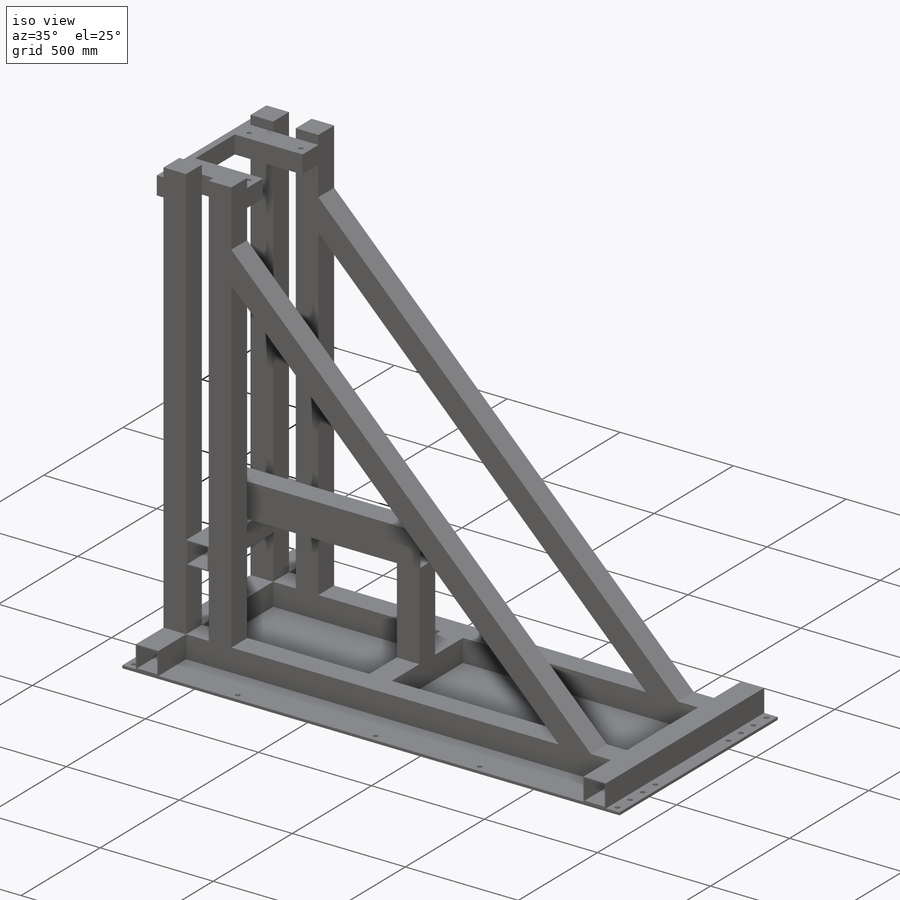
[diagram: iso view]
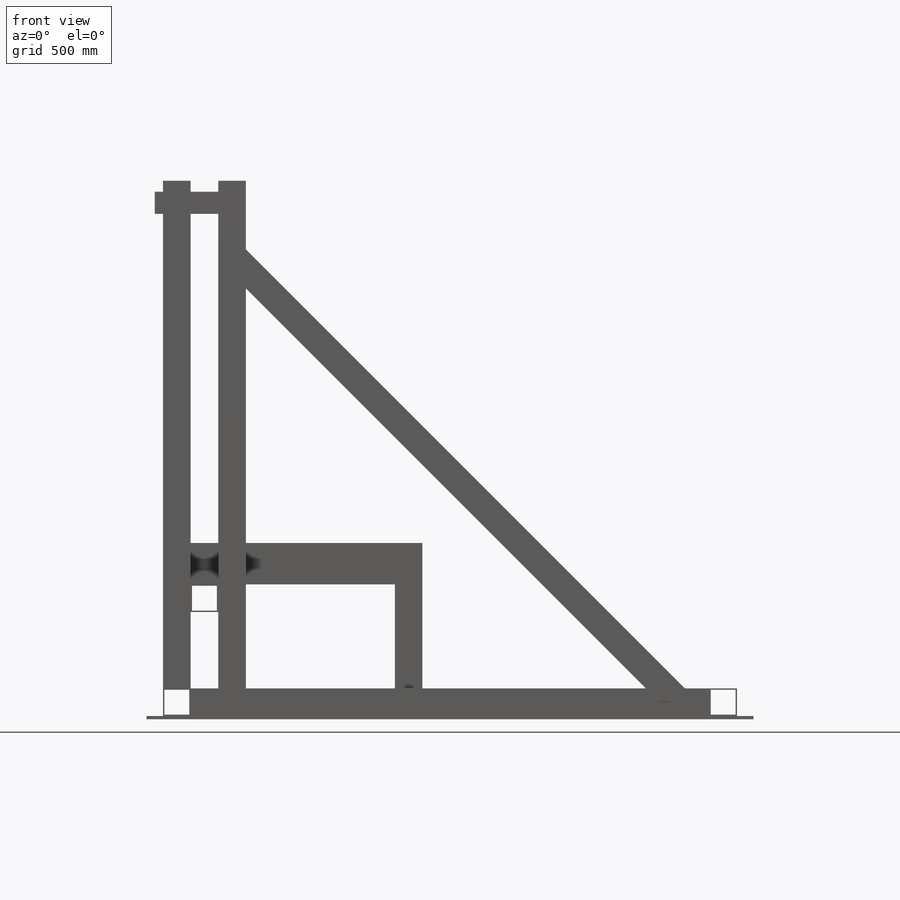
[diagram: front view]
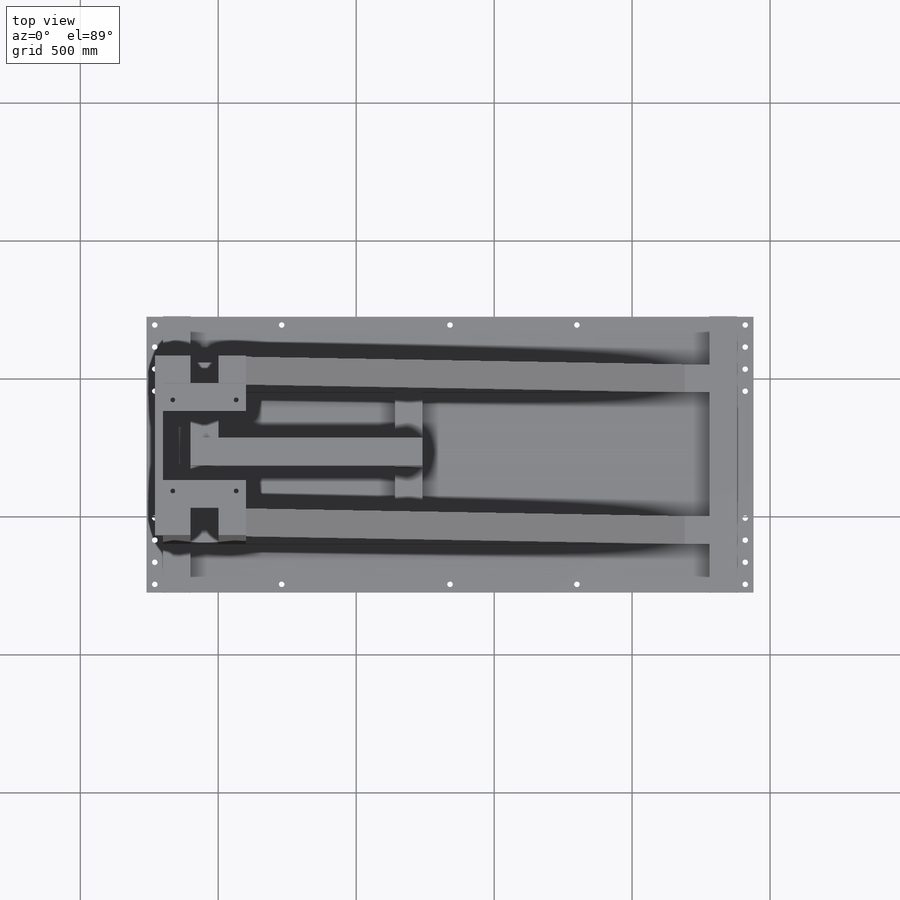
[diagram: top view]
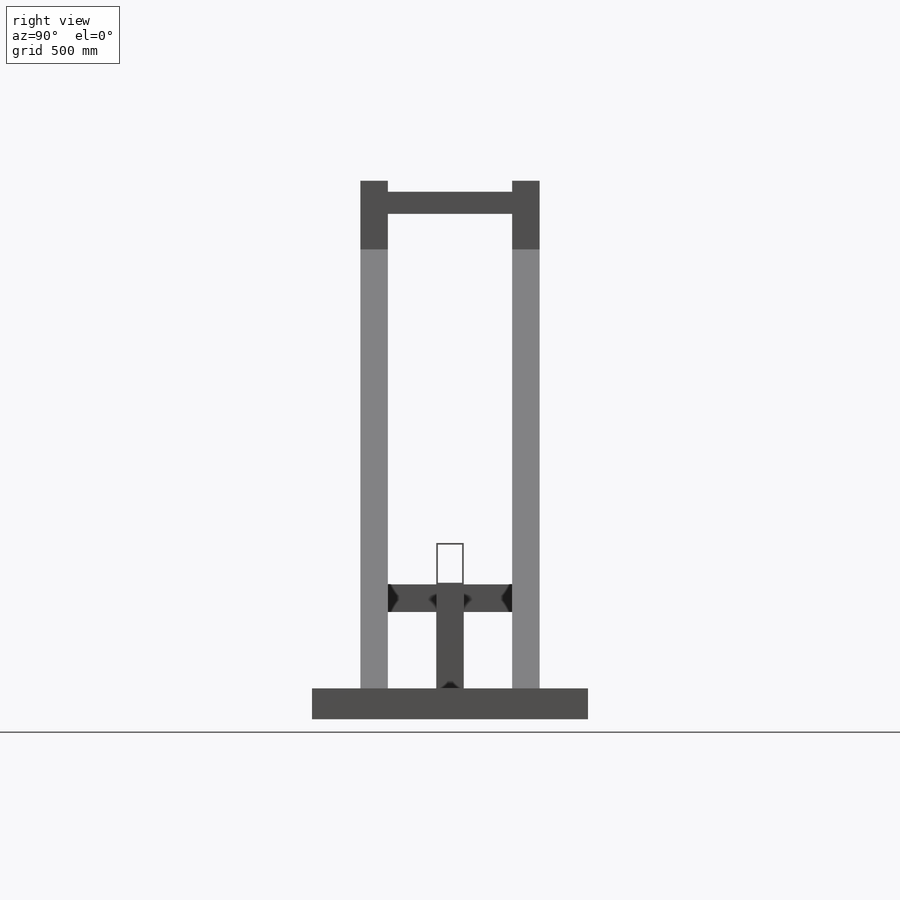
[diagram: right view]
SOLIDWORKS PART (.sldprt)
format: sldprt  version: not decoded by parser v0  size: 940,032 bytes
history: native  units: mm
features: sketch x16, extrude x12, cut_extrude x5, mirror x3, material x1, plane x1 (+12 scaffold rows collapsed)
feature tree (50):
  scaffold x12  (default folders/planes/origin — collapsed)
  material  "Plain Carbon Steel"
  sketch  "Base"  dims[c1.D7=50.0mm c1.D1=1940.0mm c1.D2=1780.0mm c1.D3=100.0mm c1.D4=100.0mm c1.D5=100.0mm c1.D6=2800.0mm c2.D7=100.0mm c2.D6=1020.0mm c2.D8=800.0mm c2.D9=800.0mm c3.D8=150.0mm c3.D9=400.0mm c3.D10=550.0mm c3.D6=1020.0mm c4.D9=350.0mm c4.D10=550.0mm c4.D8=100.0mm c4.D6=100.0mm c5.D8=200.0mm c5.D9=350.0mm c5.D10=100.0mm c5.D11=100.0mm c5.D12=100.0mm c5.D13=180.0mm c5.D14=~221.916919mm c6.D11=400.0mm c6.D4=100.0mm c7.D11=100.0mm c7.D9=~1449.019893mm c8.D9=45.0deg c8.D8=2250.0mm]
  extrude  "Boss-Extrude1"  Depth=100mm
  sketch  "Sketch15"  dims[c1.D2=5.0mm c1.D3=5.0mm c1.D4=5.0mm c1.D5=5.0mm c1.D6=5.0mm c1.D7=5.0mm c1.D8=5.0mm c1.D9=5.0mm c1.D10=5.0mm c1.D11=~16.456636mm c2.D8=~2022.992832mm c3.D8=~179.888712deg c4.D8=5.0mm c4.D11=5.0mm c4.D12=~2017.915289mm c4.D1=0.0mm]
  cut_extrude  "Cut-Extrude3"  Depth=90mm
  sketch  "Sketch1"  dims[c1.D3=30.0mm c1.D1=80.0mm c1.D2=5.0mm c1.D4=2000.0mm c2.D2=1900.0mm]
  extrude  "Boss-Extrude2"  Depth=100mm
  sketch  "Sketch3"  dims[c1.D3=30.0mm c1.D1=60.0mm c1.D2=60.0mm c2.D1=80.0mm c2.D2=5.0mm c2.D4=10.0mm c2.D3=40.0mm]
  sketch  "Sketch2"  dims[c1.D1=18.0mm c1.D2=18.0mm c1.D3=50.0mm c1.D4=50.0mm c2.D3=115.0mm c2.D4=115.0mm c2.D5=40.0mm]
  cut_extrude  "Cut-Extrude1"  [1 undecoded]
  plane  "Plane1"  Offset=225mm
  mirror  "Mirror2"
  sketch  "Sketch5"  dims[D1=100.0mm D2=100.0mm D3=100.0mm D4=5.0mm D5=5.0mm]
  extrude  "Boss-Extrude6"  Depth=500mm
  sketch  "Sketch6"
  extrude  "Boss-Extrude7"  Depth=30mm
  sketch  "Sketch7"  dims[D1=100.0mm D2=477.0mm]
  extrude  "Boss-Extrude8"  Depth=100mm
  sketch  "Sketch8"  dims[D1=5.0mm]
  cut_extrude  "Cut-Extrude2"  Depth=760mm
  sketch  "Sketch9"  dims[D1=30.0mm D2=80.0mm D3=30.0mm D4=80.0mm D5=~826.269728mm]
  extrude  "Boss-Extrude9"  Depth=490mm
  sketch  "Sketch11"  dims[c1.D6=20.0mm c1.D1=2200.0mm c1.D2=1000.0mm c1.D3=30.0mm c1.D4=30.0mm c1.D5=30.0mm c1.D7=460.0mm c1.D8=610.0mm c1.D9=460.0mm c2.D6=20.0mm c2.D8=20.0mm c2.D1=2200.0mm c2.D2=1100.0mm c2.D3=30.0mm c2.D4=30.0mm c2.D5=30.0mm c2.D7=460.0mm c3.D8=610.0mm c3.D9=460.0mm c3.D1=~838.091406mm]
  extrude  "Boss-Extrude10"  Depth=12mm
  sketch  "Sketch12"
  extrude  "15x10x6_profil-1"  [1 undecoded]
  mirror  "15x10x6_profil"
  extrude  "Boss-Extrude11"  Depth=840mm
  sketch  "Sketch18"
  extrude  "Block1-2"  [1 undecoded]
  mirror  "Block1"
  extrude  "Boss-Extrude13"  Depth=450mm
  sketch  "Sketch14"  dims[D1=100.0mm D2=10.0mm]
  extrude  "Boss-Extrude12"  [1 undecoded]
  sketch  "Sketch16"  dims[D1=0.0mm]
  cut_extrude  "Cut-Extrude4"  [1 undecoded]
  sketch  "Sketch17"  dims[D1=0.0mm]
  cut_extrude  "Cut-Extrude5"  [1 undecoded]
decode coverage: 24 of 36 modeling features carry decoded parameters
note: ~ marks probable driven/reference dimensions
note: 6 parameter values undecoded
summary: no parameter record found for 6 features
note: suppression state not decoded; provenance and decode notes live in map.json
